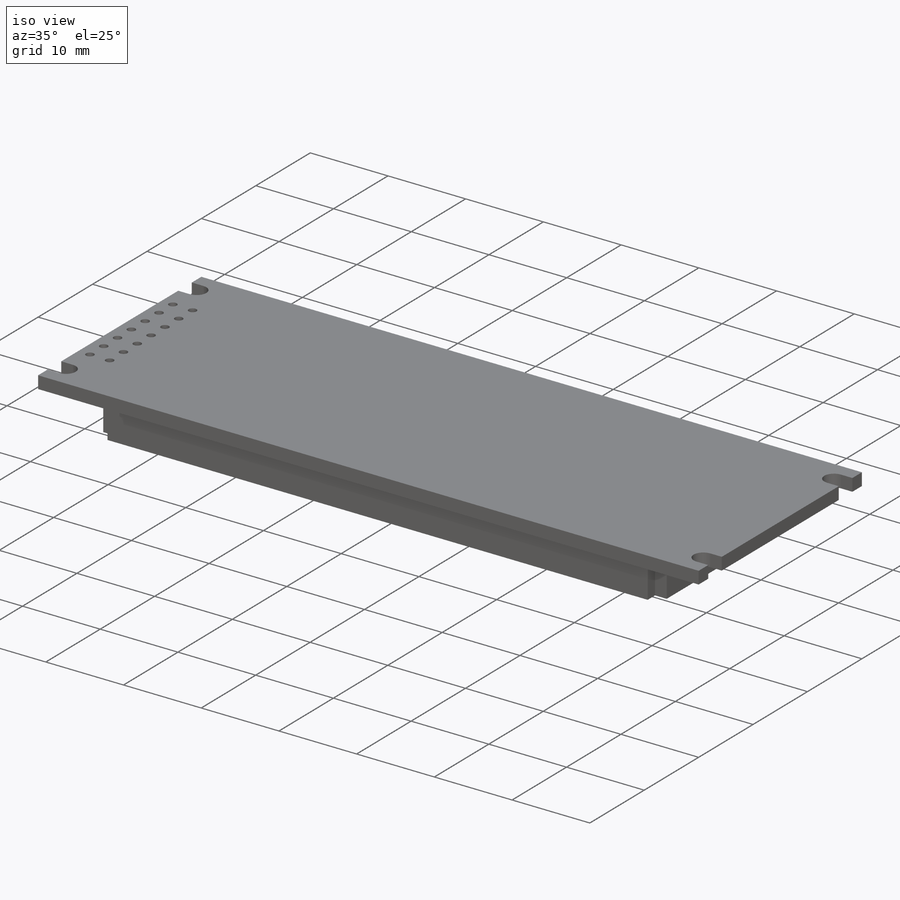
[diagram: iso view]
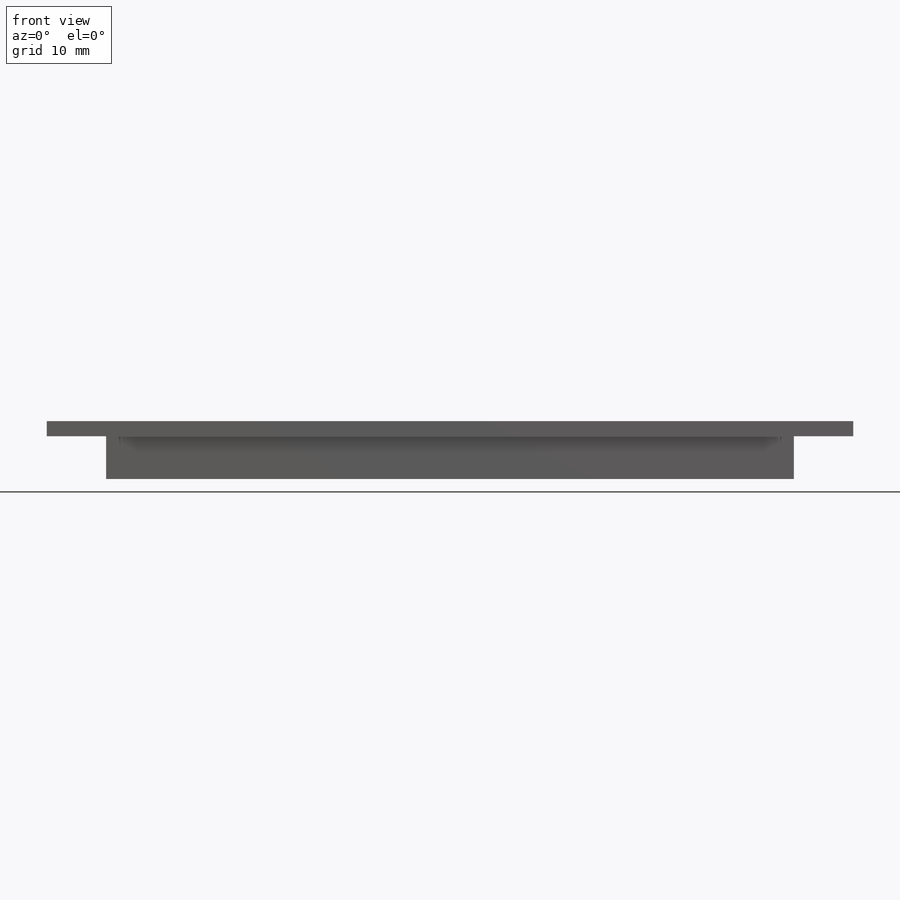
[diagram: front view]
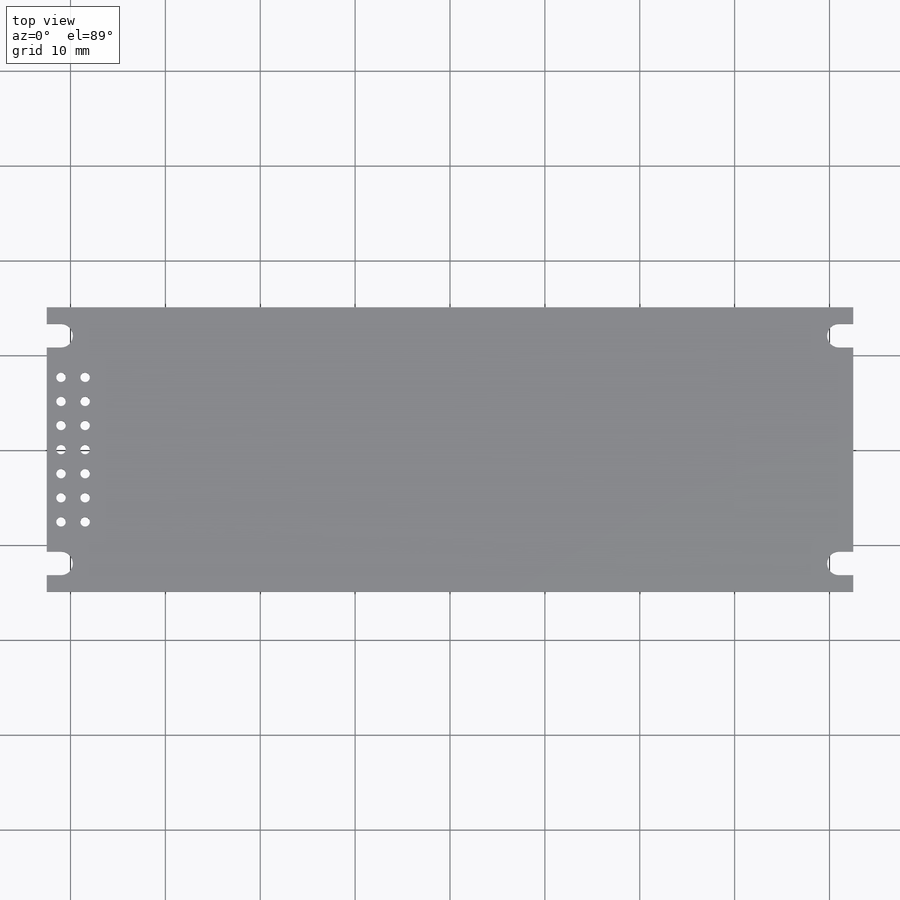
[diagram: top view]
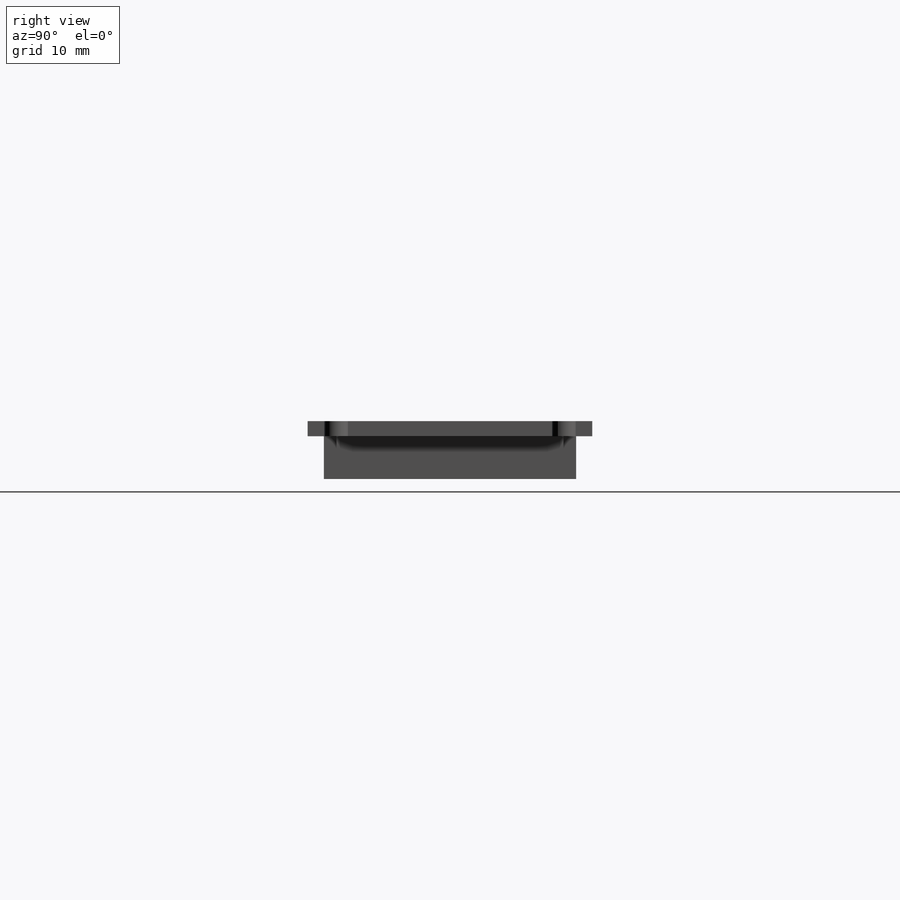
[diagram: right view]
SOLIDWORKS PART (.sldprt)
format: sldprt  version: not decoded by parser v0  size: 476,160 bytes
history: native  units: mm
features: sketch x5, plane x3, cut_extrude x3, extrude x2, material x1 (+8 scaffold rows collapsed)
feature tree (22):
  scaffold x8  (default folders/planes/origin — collapsed)
  material  "Material <not specified>"
  plane  "Plan de face"
  plane  "Plan de dessus"
  plane  "Plan de droite"
  sketch  "Esquisse1"  dims[c1.D1=~1.260553mm c1.D3=1.25mm c1.D5=1.25mm c2.D1=30.0mm c3.D1=90.0deg c4.D1=24.0mm c4.D2=85.0mm c5.D1=85.0mm c5.D2=30.0mm c5.D3=3.0mm c5.D4=1.5mm c6.D3=82.0mm c6.D4=24.0mm]
  extrude  "Boss.-Extru.1"  Depth=1.6mm
  sketch  "Esquisse2"  dims[c1.D1=~1.446508mm c1.D3=1.0mm c1.D4=1.0mm c2.D1=~0.67181mm c2.D3=3.37mm c2.D4=2.89mm c3.D1=7.38mm c3.D2=1.5mm c3.D3=2.0 c3.D4=7.0]
  cut_extrude  "Enlèv. mat.-Extru.1"  [1 undecoded]
  sketch  "Esquisse3"  dims[D1=26.6mm]
  extrude  "Boss.-Extru.2"  Depth=4.5mm
  sketch  "Esquisse5"  dims[D1=16.0mm]
  cut_extrude  "Enlèv. mat.-Extru.2"  Depth=0.2mm
  sketch  "Esquisse6"  dims[D1=3.135mm D2=2.51mm D3=16.0 D4=2.0]
  cut_extrude  "Enlèv. mat.-Extru.3"  Depth=0.1mm
decode coverage: 9 of 10 modeling features carry decoded parameters
note: ~ marks probable driven/reference dimensions
note: 1 parameter value undecoded
note: suppression state not decoded; provenance and decode notes live in map.json
